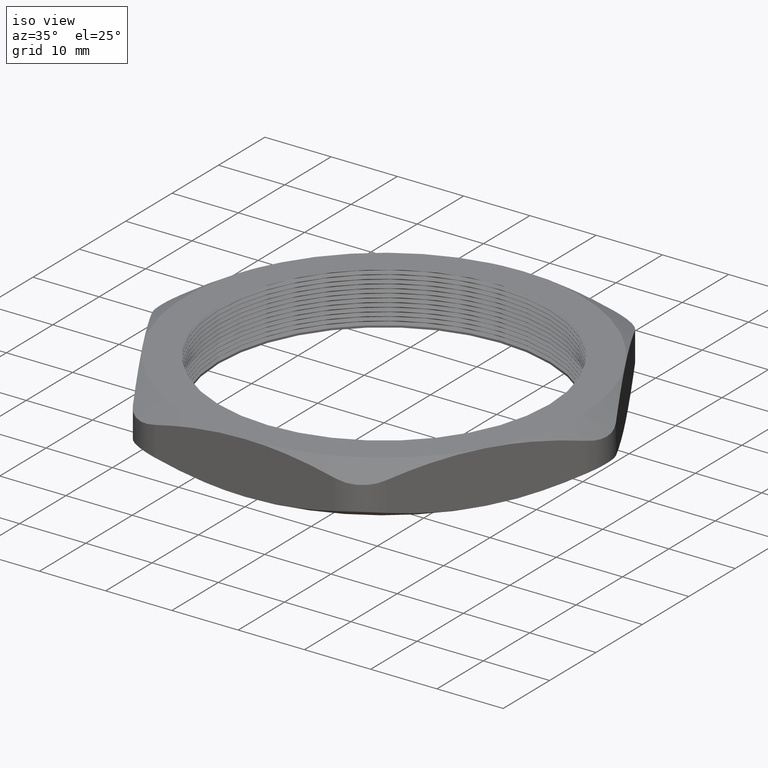
[diagram: clean part render]
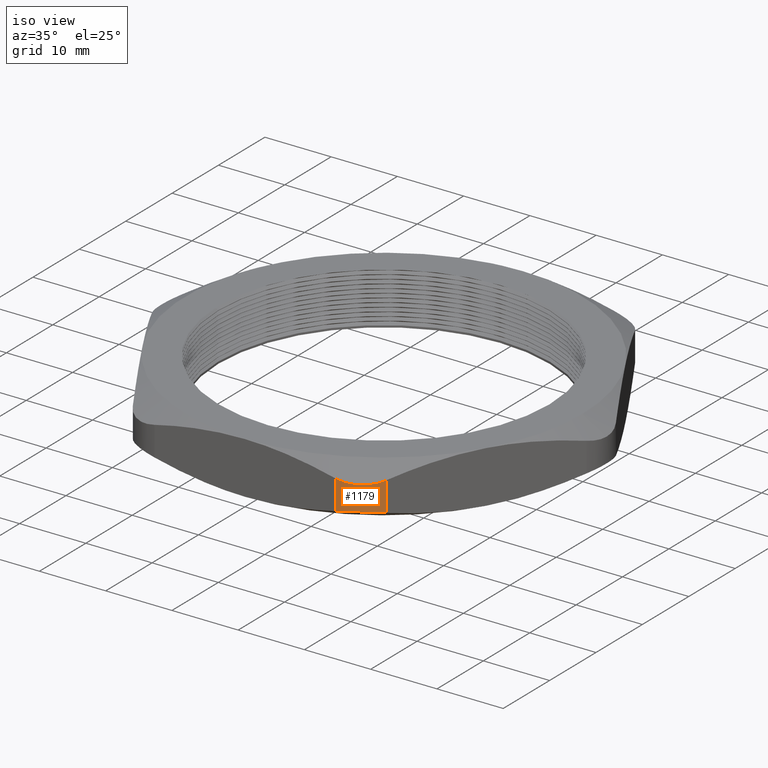
[diagram: same view with one face highlighted and labeled with its STEP entity id]
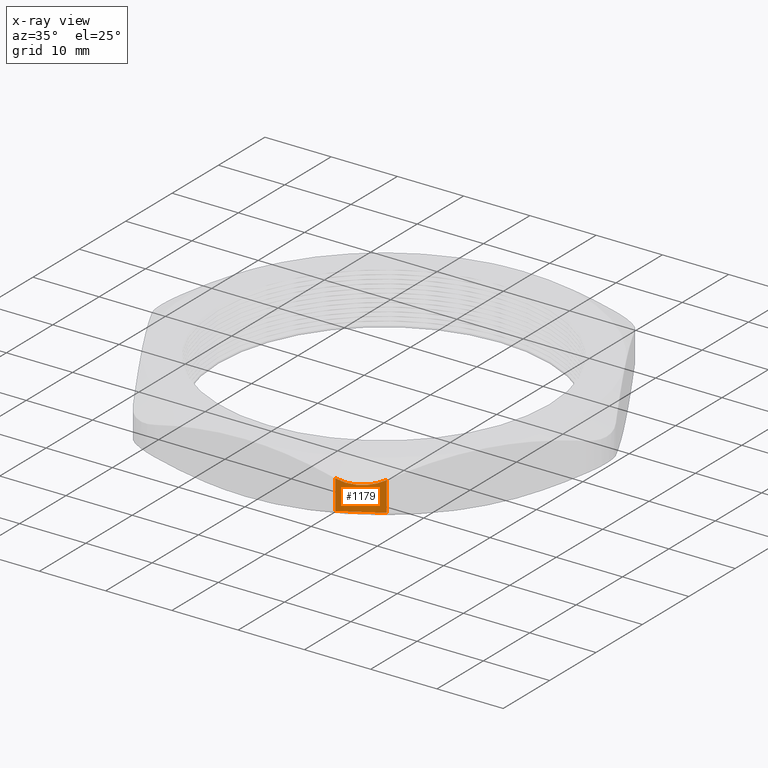
[diagram: x-ray of the same camera — body ghosted, the highlighted face saturated]
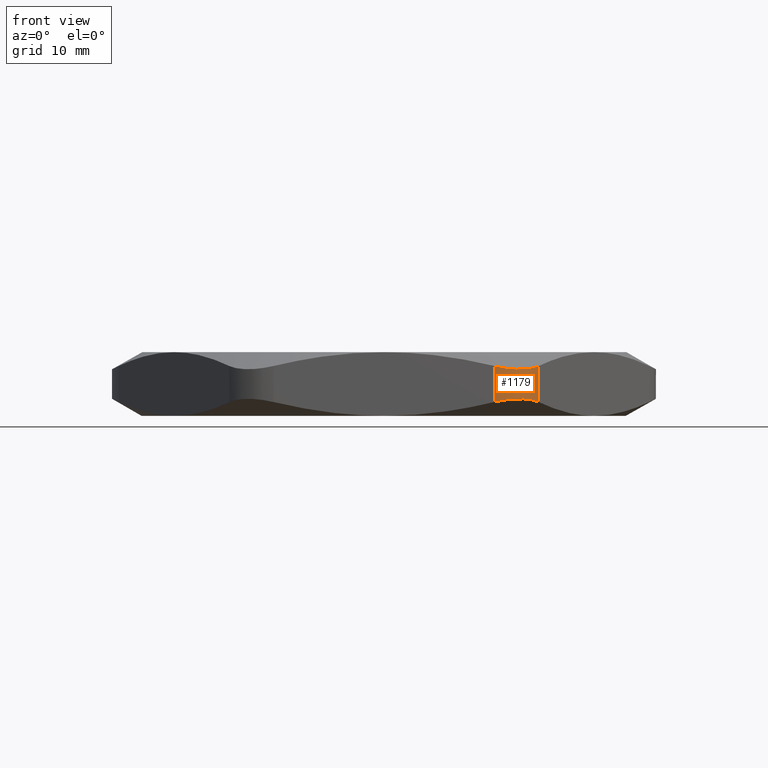
[diagram: same view with one face highlighted and labeled with its STEP entity id]
A machine part, iso view. The second image highlights one B-rep face of the part: STEP entity #1179.
The next image is the same camera in x-ray: the body ghosted, the highlighted face saturated — about 0% of this face is hidden behind the body in this view.
A second angle (front view) of the same face is appended — the face is thin or edge-on in the first view.
In plain terms, the highlighted cylindrical surface (partial cylindrical patch) has radius 6.35 mm, axis along (0, 0, -1).
Its self-contained STEP definition (entity closure, byte-faithful):
#486 = CARTESIAN_POINT ( 'NONE',  ( 0.5369357503463522100, -1.179999999999999700, 0.06721404586569487700 ) ) ;
#487 = CARTESIAN_POINT ( 'NONE',  ( 0.5585386968758961900, -1.180000000000000600, 0.07237975066804326600 ) ) ;
#488 = CARTESIAN_POINT ( 'NONE',  ( 0.5803717184231761400, -1.177156764165109100, 0.07637160150552625700 ) ) ;
#489 = CARTESIAN_POINT ( 'NONE',  ( 0.6118967407510953500, -1.168744920922675000, 0.08036293289793357300 ) ) ;
#490 = CARTESIAN_POINT ( 'NONE',  ( 0.6222508287803755200, -1.165250896099422600, 0.08137240177445177700 ) ) ;
#491 = CARTESIAN_POINT ( 'NONE',  ( 0.6426363754475590300, -1.156823774276417100, 0.08272984357175586200 ) ) ;
#492 = CARTESIAN_POINT ( 'NONE',  ( 0.6526144673638901700, -1.151897965371903300, 0.08306829295617780600 ) ) ;
#493 = CARTESIAN_POINT ( 'NONE',  ( 0.6716009541221927800, -1.140915991567793600, 0.08306013245854894400 ) ) ;
#494 = CARTESIAN_POINT ( 'NONE',  ( 0.6806907329805714800, -1.134828307281984200, 0.08271979029129152000 ) ) ;
#495 = CARTESIAN_POINT ( 'NONE',  ( 0.6980647301955034100, -1.121461699430824200, 0.08136507564973501100 ) ) ;
#496 = CARTESIAN_POINT ( 'NONE',  ( 0.7064093568846969700, -1.114115284490267100, 0.08033741714334166600 ) ) ;
#497 = CARTESIAN_POINT ( 'NONE',  ( 0.7295674056393837100, -1.090847786939235700, 0.07630181465680752100 ) ) ;
#498 = CARTESIAN_POINT ( 'NONE',  ( 0.7426431885255216900, -1.073704265578844200, 0.07237852613360917800 ) ) ;
#499 = CARTESIAN_POINT ( 'NONE',  ( 0.7534421012924615900, -1.054999999999999500, 0.06721404586569473800 ) ) ;
#503 = B_SPLINE_CURVE_WITH_KNOTS ( 'NONE', 3,
 ( #499, #498, #497, #496, #495, #494, #493, #492, #491, #490, #489, #488, #487, #486 ),
 .UNSPECIFIED., .F., .F.,
 ( 4, 2, 2, 2, 2, 2, 4 ),
 ( 4.925667812690175100E-018, 0.001669271586080336600, 0.002503907379120498100, 0.003338543172160660500, 0.004173178965200822500, 0.005007814758240984900, 0.006677086344321312400 ),
 .UNSPECIFIED. ) ;
#1161 = ORIENTED_EDGE ( 'NONE', *, *, #1318, .F. ) ;
#1179 = ADVANCED_FACE ( 'NONE', ( #2226 ), #2225, .T. ) ;
#1180 = EDGE_LOOP ( 'NONE', ( #1181, #1182, #1183, #1161 ) ) ;
#1181 = ORIENTED_EDGE ( 'NONE', *, *, #1541, .F. ) ;
#1182 = ORIENTED_EDGE ( 'NONE', *, *, #1391, .F. ) ;
#1183 = ORIENTED_EDGE ( 'NONE', *, *, #1815, .F. ) ;
#1277 = VERTEX_POINT ( 'NONE', #2401 ) ;
#1318 = EDGE_CURVE ( 'NONE', #1277, #1325, #2482, .T. ) ;
#1325 = VERTEX_POINT ( 'NONE', #2473 ) ;
#1388 = VERTEX_POINT ( 'NONE', #2672 ) ;
#1391 = EDGE_CURVE ( 'NONE', #1388, #1392, #2661, .T. ) ;
#1392 = VERTEX_POINT ( 'NONE', #2657 ) ;
#1541 = EDGE_CURVE ( 'NONE', #1392, #1277, #2834, .T. ) ;
#1815 = EDGE_CURVE ( 'NONE', #1325, #1388, #503, .T. ) ;
#2221 = DIRECTION ( 'NONE',  ( -1.000000000000000000, 0.0000000000000000000, 0.0000000000000000000 ) ) ;
#2222 = DIRECTION ( 'NONE',  ( 0.0000000000000000000, 0.0000000000000000000, -1.000000000000000000 ) ) ;
#2223 = AXIS2_PLACEMENT_3D ( 'NONE', #2230, #2222, #2221 ) ;
#2225 = CYLINDRICAL_SURFACE ( 'NONE', #2223, 0.2500000000000000000 ) ;
#2226 = FACE_OUTER_BOUND ( 'NONE', #1180, .T. ) ;
#2230 = CARTESIAN_POINT ( 'NONE',  ( 0.5369357503463518800, -0.9299999999999996000, 0.3100000000000000000 ) ) ;
#2401 = CARTESIAN_POINT ( 'NONE',  ( 0.7534421012924615900, -1.054999999999999700, 0.2427859541343052300 ) ) ;
#2473 = CARTESIAN_POINT ( 'NONE',  ( 0.7534421012924615900, -1.054999999999999500, 0.06721404586569473800 ) ) ;
#2479 = DIRECTION ( 'NONE',  ( 0.0000000000000000000, 0.0000000000000000000, -1.000000000000000000 ) ) ;
#2480 = VECTOR ( 'NONE', #2479, 39.37007874015748100 ) ;
#2481 = CARTESIAN_POINT ( 'NONE',  ( 0.7534421012924615900, -1.054999999999999700, 0.3100000000000000000 ) ) ;
#2482 = LINE ( 'NONE', #2481, #2480 ) ;
#2657 = CARTESIAN_POINT ( 'NONE',  ( 0.5369357503463522100, -1.179999999999999700, 0.2427859541343050900 ) ) ;
#2658 = DIRECTION ( 'NONE',  ( 0.0000000000000000000, 0.0000000000000000000, 1.000000000000000000 ) ) ;
#2659 = VECTOR ( 'NONE', #2658, 39.37007874015748100 ) ;
#2660 = CARTESIAN_POINT ( 'NONE',  ( 0.5369357503463518800, -1.179999999999999700, 0.3100000000000000000 ) ) ;
#2661 = LINE ( 'NONE', #2660, #2659 ) ;
#2672 = CARTESIAN_POINT ( 'NONE',  ( 0.5369357503463522100, -1.179999999999999700, 0.06721404586569487700 ) ) ;
#2834 = B_SPLINE_CURVE_WITH_KNOTS ( 'NONE', 3,
 ( #2835, #2892, #2891, #2890, #2889, #2888, #2887, #2886, #2885, #2884, #2883, #2882, #2881, #2880 ),
 .UNSPECIFIED., .F., .F.,
 ( 4, 2, 2, 2, 2, 2, 4 ),
 ( 6.992893892674702500E-018, 0.001669271586080339400, 0.002503907379120503700, 0.003338543172160668800, 0.004173178965200833800, 0.005007814758240998000, 0.006677086344321320200 ),
 .UNSPECIFIED. ) ;
#2835 = CARTESIAN_POINT ( 'NONE',  ( 0.5369357503463522100, -1.179999999999999700, 0.2427859541343050900 ) ) ;
#2880 = CARTESIAN_POINT ( 'NONE',  ( 0.7534421012924615900, -1.054999999999999700, 0.2427859541343052300 ) ) ;
#2881 = CARTESIAN_POINT ( 'NONE',  ( 0.7426406280276903700, -1.073708700491182300, 0.2376202493319567500 ) ) ;
#2882 = CARTESIAN_POINT ( 'NONE',  ( 0.7292618027920843000, -1.091195033875053800, 0.2336283984944737300 ) ) ;
#2883 = CARTESIAN_POINT ( 'NONE',  ( 0.7062144216875244600, -1.114290582444686700, 0.2296370671020664400 ) ) ;
#2884 = CARTESIAN_POINT ( 'NONE',  ( 0.6980114634144941600, -1.121510473299437200, 0.2286275982255481800 ) ) ;
#2885 = CARTESIAN_POINT ( 'NONE',  ( 0.6805205885013933000, -1.134951313671748600, 0.2272701564282440500 ) ) ;
#2886 = CARTESIAN_POINT ( 'NONE',  ( 0.6712656668977312600, -1.141129690300331000, 0.2269317070438222300 ) ) ;
#2887 = CARTESIAN_POINT ( 'NONE',  ( 0.6522617552205254300, -1.152081483259582500, 0.2269398675414511000 ) ) ;
#2888 = CARTESIAN_POINT ( 'NONE',  ( 0.6424447765496059700, -1.156909620522816700, 0.2272802097087084900 ) ) ;
#2889 = CARTESIAN_POINT ( 'NONE',  ( 0.6221819559806113200, -1.165272639550648300, 0.2286349243502649700 ) ) ;
#2890 = CARTESIAN_POINT ( 'NONE',  ( 0.6116474606707503800, -1.168826090778308800, 0.2296625828566581400 ) ) ;
#2891 = CARTESIAN_POINT ( 'NONE',  ( 0.5799181923317215900, -1.177247800526430200, 0.2336981853431922800 ) ) ;
#2892 = CARTESIAN_POINT ( 'NONE',  ( 0.5585335758802321100, -1.179999999999999300, 0.2376214738663906300 ) ) ;